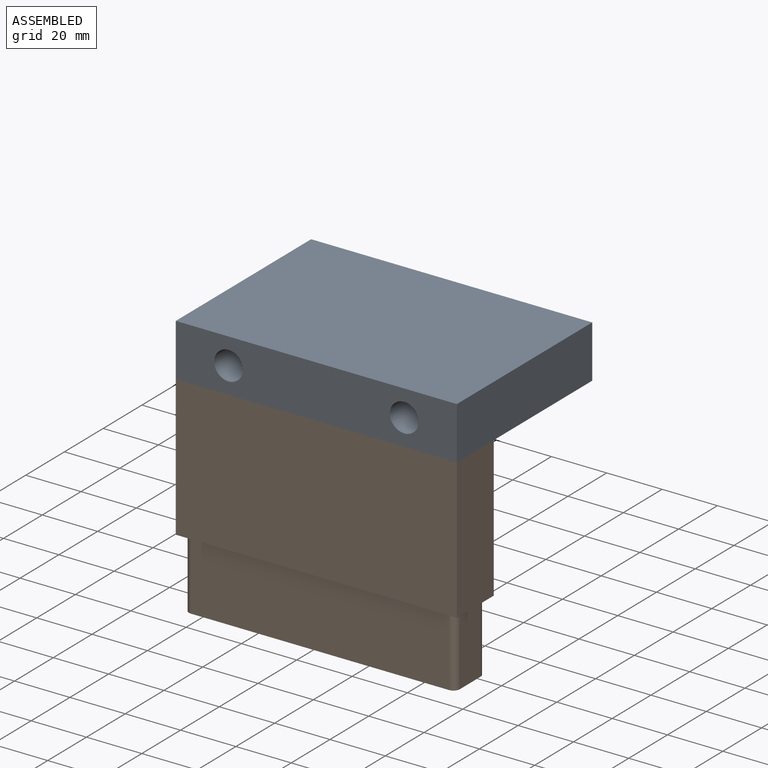
[diagram: assembled view]
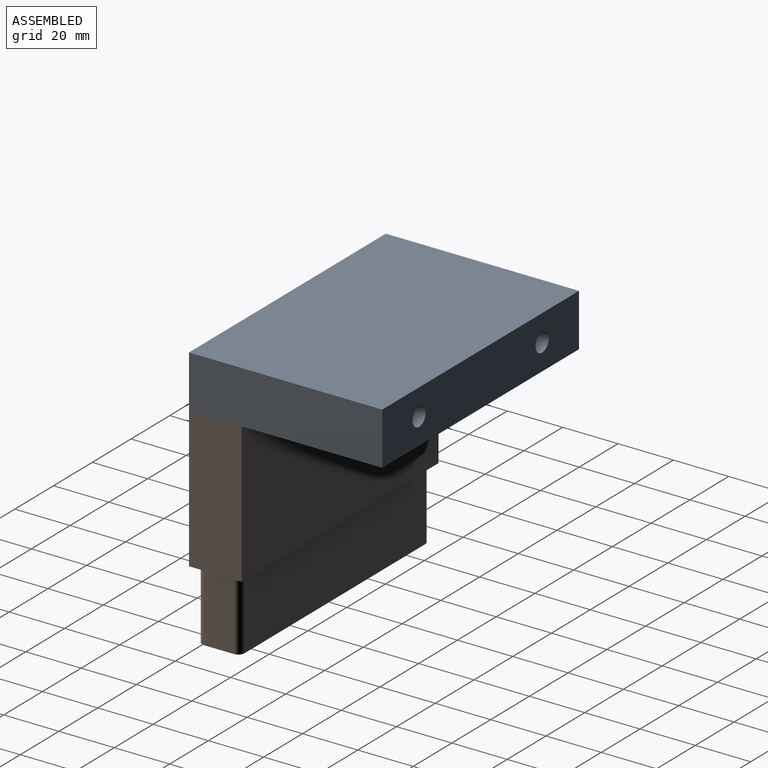
[diagram: assembled view, second angle]
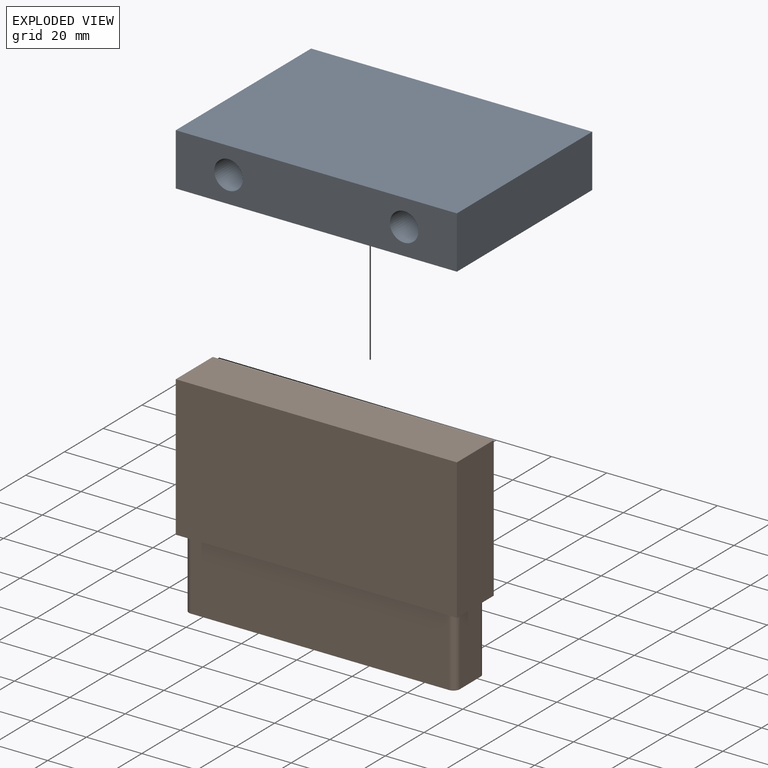
[diagram: exploded view]
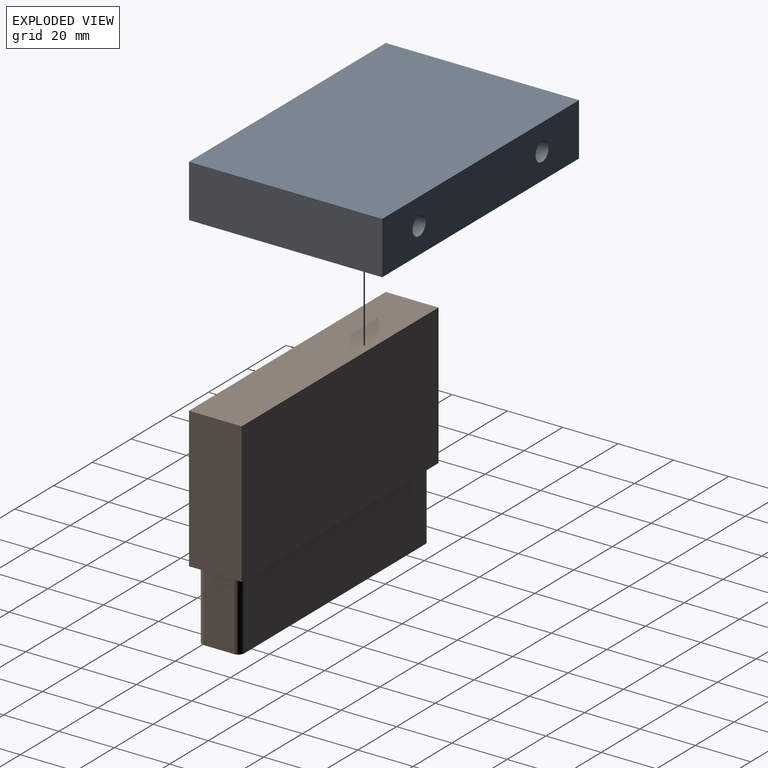
[diagram: exploded view, second angle]
ASSEMBLY  parts=2 mates=3
PART A: 13 faces, bbox 101.6x69.9x19.1 mm
  f0: cylinder r=3.37mm len=49.53mm, axis (0,-1,0), area 1049.8mm2, adj f6,f11
  f1: cylinder r=3.37mm len=49.53mm, axis (0,-1,0), area 1049.8mm2, adj f6,f9
  f2: plane 69.85x19.05mm, normal (-1,0,0), area 1330.6mm2, adj f3,f5,f6,f7,f8
  f3: plane 101.6x19.05mm, normal (0,-1,0), area 1768.2mm2, adj f2,f4,f7,f8,f10,f12
  f4: plane 69.85x19.05mm, normal (1,0,0), area 1330.6mm2, adj f3,f5,f6,f7,f8
  f5: plane 101.6x50.8mm, normal (0,0,-1), area 5161.3mm2, adj f2,f4,f6,f8
  f6: plane 101.6x19.05mm, normal (0,1,0), area 1864mm2, adj f0,f1,f2,f4,f5,f7
  f7: plane 101.6x69.85mm, normal (0,0,1), area 7096.8mm2, adj f2,f3,f4,f6
  f8: plane 101.6x19.05mm, normal (0,0,-1), area 1935.5mm2, adj f2,f3,f4,f5
  f9: plane 10.32x10.32mm, normal (0,-1,0), area 47.9mm2, adj f1,f10
  f10: cylinder r=5.16mm len=20.32mm, axis (0,-1,0), area 658.7mm2, adj f3,f9
  f11: plane 10.32x10.32mm, normal (0,-1,0), area 47.9mm2, adj f0,f12
  f12: cylinder r=5.16mm len=20.32mm, axis (0,-1,0), area 658.7mm2, adj f3,f11
PART B: 15 faces, bbox 101.6x19.1x76.2 mm
  f0: plane 101.6x19.05mm, normal (0,0,-1), area 442.2mm2, adj f2,f3,f4,f5,f6,f7,f8,f9
  f1: plane 101.6x19.05mm, normal (0,0,1), area 1935.5mm2, adj f2,f3,f4,f5
  f2: plane 50.8x19.05mm, normal (-1,0,0), area 967.7mm2, adj f0,f1,f3,f4
  f3: plane 101.6x50.8mm, normal (0,1,0), area 5161.3mm2, adj f0,f1,f2,f5
  f4: plane 101.6x50.8mm, normal (0,-1,0), area 5161.3mm2, adj f0,f1,f2,f5
  f5: plane 50.8x19.05mm, normal (1,0,0), area 967.7mm2, adj f0,f1,f3,f4
  f6: plane 25.4x10.73mm, normal (1,0,0), area 272.6mm2, adj f0,f10,f11,f14
  f7: plane 93.28x25.4mm, normal (0,-1,0), area 2369.4mm2, adj f0,f10,f11,f12
  f8: plane 25.4x10.73mm, normal (-1,0,0), area 272.6mm2, adj f0,f10,f12,f13
  f9: plane 93.28x25.4mm, normal (0,1,0), area 2369.4mm2, adj f0,f10,f13,f14
  f10: plane 97.86x15.31mm, normal (0,0,-1), area 1493.3mm2, adj f6,f7,f8,f9,f11,f12,f13,f14
  f11: cylinder r=2.29mm len=25.4mm, axis (0,0,1), area 91.2mm2, adj f0,f6,f7,f10
  f12: cylinder r=2.29mm len=25.4mm, axis (0,0,1), area 91.2mm2, adj f0,f7,f8,f10
  f13: cylinder r=2.29mm len=25.4mm, axis (0,0,-1), area 91.2mm2, adj f0,f8,f9,f10
  f14: cylinder r=2.29mm len=25.4mm, axis (0,0,-1), area 91.2mm2, adj f0,f6,f9,f10
PLACE A t=(-972.13,183.39,-1499.1)mm
PLACE B t=(-972.13,183.39,-1499.1)mm
MATE planar B.f1 <-> A.f8  axis (0,0,1) through (-1145.17,98.46,1150.44)mm
MATE planar B.f4 <-> A.f3  axis (0,-1,0) through (-1145.17,88.93,1125.04)mm
MATE planar A.f4 <-> B.f5  axis (1,0,0) through (-1094.37,123.86,1159.96)mm
